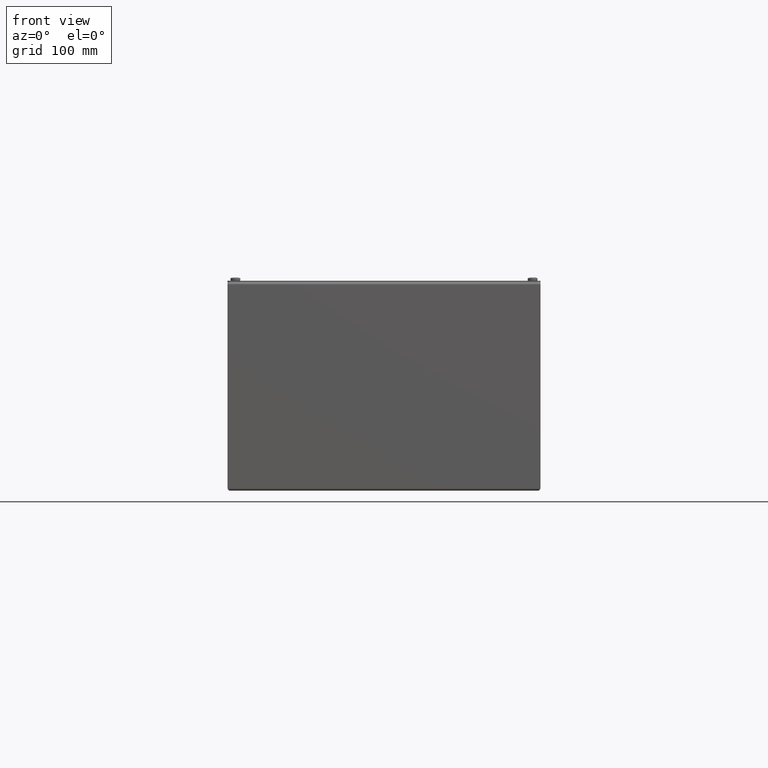
[diagram: clean part render]
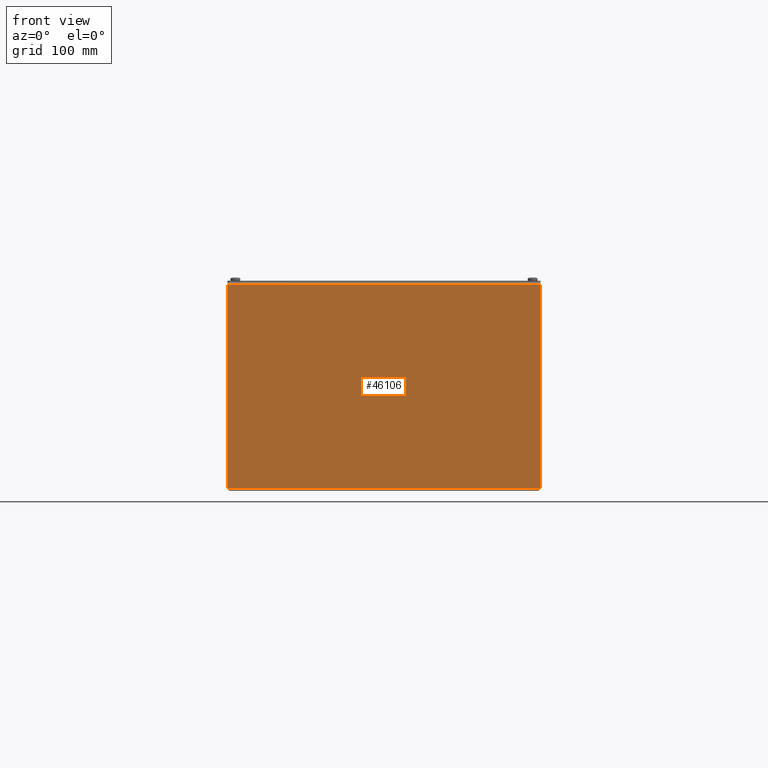
[diagram: same view with one face highlighted and labeled with its STEP entity id]
A machine part, front view. The second image highlights one B-rep face of the part: STEP entity #46106.
In plain terms, the highlighted planar face has unit normal (-0, 1, -0).
Its self-contained STEP definition (entity closure, byte-faithful):
#4502=PLANE('',#48907);
#6223=FACE_OUTER_BOUND('',#8749,.T.);
#8749=EDGE_LOOP('',(#33554,#33555,#33556,#33557));
#11674=LINE('',#61228,#16599);
#11677=LINE('',#61234,#16602);
#11702=LINE('',#61710,#16627);
#11706=LINE('',#61718,#16631);
#16599=VECTOR('',#51800,0.393700787401575);
#16602=VECTOR('',#51805,0.393700787401575);
#16627=VECTOR('',#51878,0.393700787401575);
#16631=VECTOR('',#51890,0.393700787401575);
#21760=VERTEX_POINT('',#61218);
#21761=VERTEX_POINT('',#61222);
#21763=VERTEX_POINT('',#61232);
#21777=VERTEX_POINT('',#61378);
#26319=EDGE_CURVE('',#21760,#21761,#11674,.T.);
#26322=EDGE_CURVE('',#21761,#21763,#11677,.T.);
#26363=EDGE_CURVE('',#21763,#21777,#11702,.T.);
#26367=EDGE_CURVE('',#21777,#21760,#11706,.T.);
#33554=ORIENTED_EDGE('',*,*,#26319,.T.);
#33555=ORIENTED_EDGE('',*,*,#26322,.T.);
#33556=ORIENTED_EDGE('',*,*,#26363,.T.);
#33557=ORIENTED_EDGE('',*,*,#26367,.T.);
#46106=ADVANCED_FACE('',(#6223),#4502,.F.);
#48907=AXIS2_PLACEMENT_3D('',#61726,#51903,#51904);
#51800=DIRECTION('',(-1.,-3.24440954843454E-32,0.));
#51805=DIRECTION('',(0.,-6.12323399573677E-17,-1.));
#51878=DIRECTION('',(1.,3.24440954843454E-32,0.));
#51890=DIRECTION('',(0.,6.12323399573677E-17,1.));
#51903=DIRECTION('center_axis',(-3.24440954843454E-32,1.,-2.64622153794192E-31));
#51904=DIRECTION('ref_axis',(0.,2.64622153794192E-31,1.));
#61218=CARTESIAN_POINT('',(6.,-12.,7.901));
#61222=CARTESIAN_POINT('',(-6.,-12.,7.901));
#61228=CARTESIAN_POINT('',(-3.,-12.,7.901));
#61232=CARTESIAN_POINT('',(-6.,-12.,0.099));
#61234=CARTESIAN_POINT('',(-6.,-12.,8.));
#61378=CARTESIAN_POINT('',(6.,-12.,0.099));
#61710=CARTESIAN_POINT('',(3.,-12.,0.0989999999999999));
#61718=CARTESIAN_POINT('',(6.,-12.,0.));
#61726=CARTESIAN_POINT('Origin',(0.,-12.,4.));